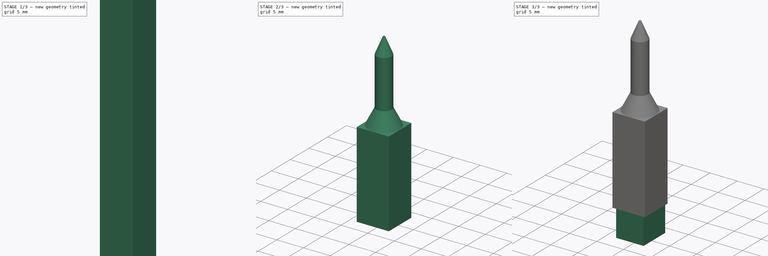
[diagram: build sequence overview — one tinted view per stage of 3, left to right]
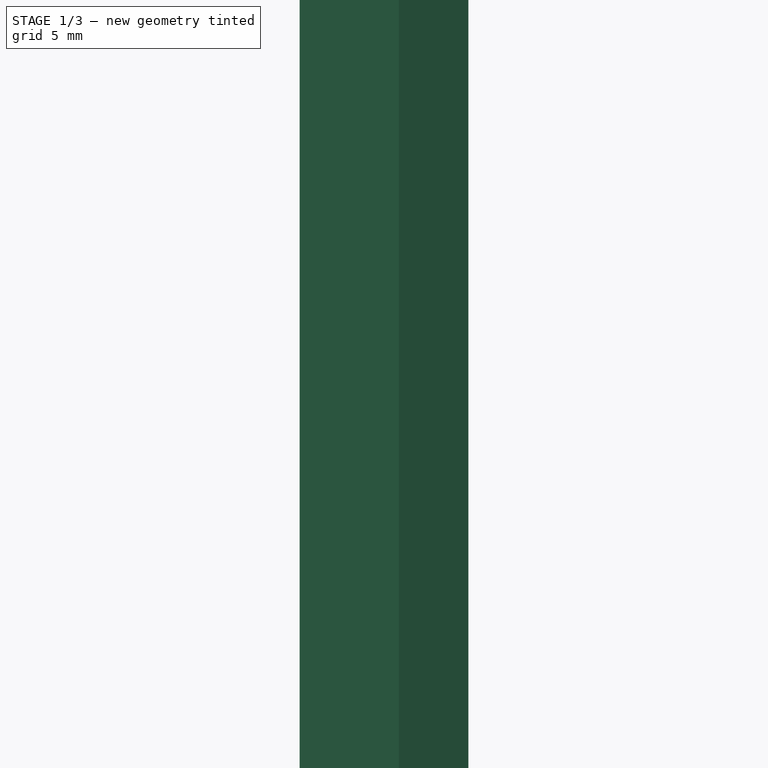
[diagram: stage 1 of 3 — iso view after this stage's code; geometry added in this stage tinted green]
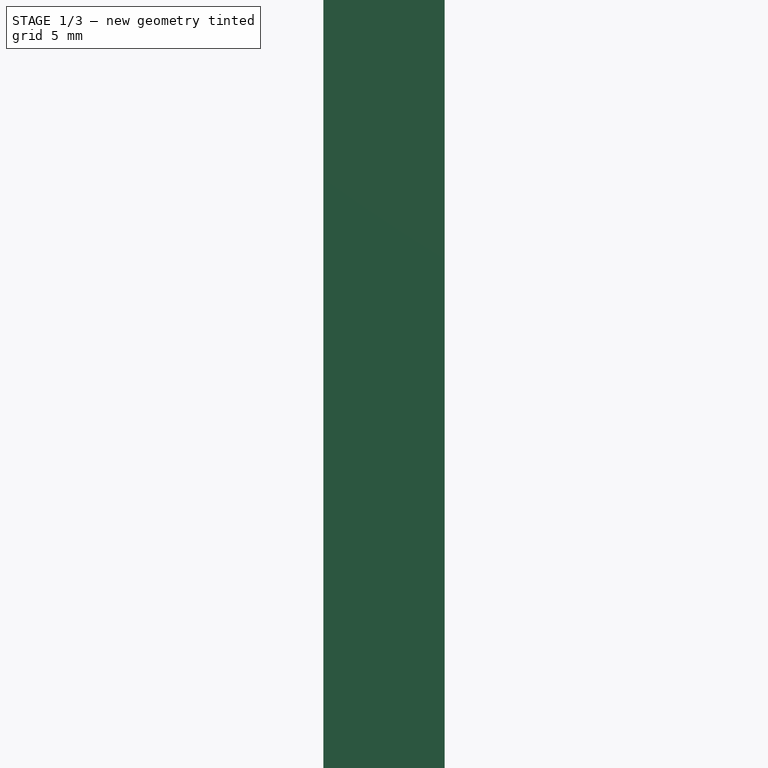
[diagram: stage 1 of 3 — front view after this stage's code; geometry added in this stage tinted green]
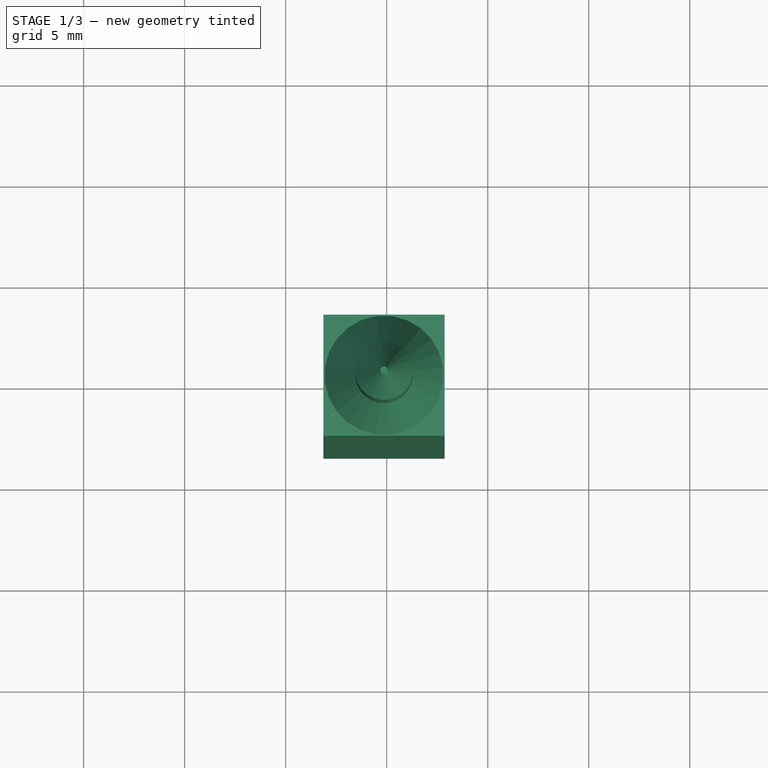
[diagram: stage 1 of 3 — top view after this stage's code; geometry added in this stage tinted green]
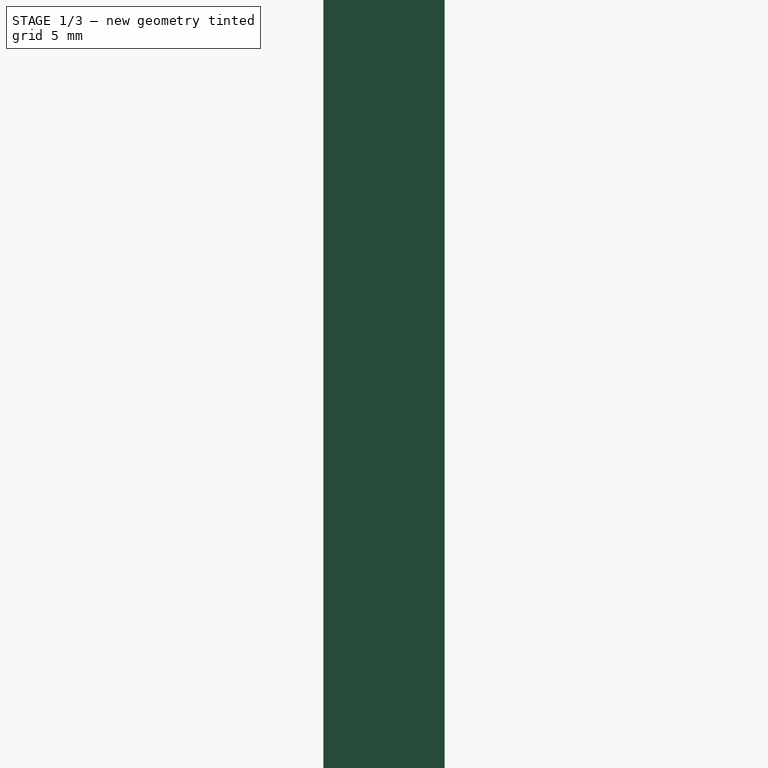
[diagram: stage 1 of 3 — right view after this stage's code; geometry added in this stage tinted green]
FCSTD DOCUMENT  (FreeCAD 0.21R33771 (Git))
Label: Headbar holder
License: All rights reserved
LicenseURL: https://en.wikipedia.org/wiki/All_rights_reserved
objects: Part::Feature×2, PartDesign::FeatureBase×2, PartDesign::Body×2, Part::FeaturePython×2, Sketcher::SketchObject×1, Part::Face×1, App::DocumentObjectGroup×1, Part::MultiFuse×1
note: 11 computed .brp shape members not serialized (recipe doc carries the construction recipe); baked Part::Feature solids carry a one-line shape summary decoded from their .brp

FEATURE [Part::Feature] Stereotaxic_Ear_Bar_mouse_v1_12_21_2015_STL001_solid  label="Stereotaxic_Ear_Bar_mouse_v1_12_21_2015_STL001 (Solid)"
  shape: bbox 6 x 6 x 80 mm, 204 faces (baked)
FEATURE [PartDesign::FeatureBase] BaseFeature
  BaseFeature = -> Stereotaxic_Ear_Bar_mouse_v1_12_21_2015_STL001_solid
FEATURE [Sketcher::SketchObject] Sketch
  FullyConstrained = false
  MapMode = 5
  Support = -> [XY_Plane]
  sketch-geometry (4):
    g0: LineSegment StartX=-8.29775 StartY=7.67293 StartZ=0 EndX=9.80969 EndY=7.67293 EndZ=0
    g1: LineSegment StartX=9.80969 StartY=7.67293 StartZ=0 EndX=9.80969 EndY=-9.01177 EndZ=0
    g2: LineSegment StartX=9.80969 StartY=-9.01177 StartZ=0 EndX=-8.29775 EndY=-9.01177 EndZ=0
    g3: LineSegment StartX=-8.29775 StartY=-9.01177 StartZ=0 EndX=-8.29775 EndY=7.67294 EndZ=0
  constraints (8):
    c: Coincident(g0,g1)
    c: Coincident(g1,g2)
    c: Coincident(g2,g3)
    c: Coincident(g3,g0)
    c: Horizontal(g0)
    c: Horizontal(g2)
    c: Vertical(g1)
    c: Vertical(g3)
FEATURE [PartDesign::Body] Body
  BaseFeature = -> Stereotaxic_Ear_Bar_mouse_v1_12_21_2015_STL001_solid
  Group = -> [BaseFeature,Sketch]
  Origin = -> Origin
  Tip = -> BaseFeature
FEATURE [Part::Face] Face
  FaceMakerClass = Part::FaceMakerBullseye
  Placement = pos=(0,0,49) rot=(0,0,1;0rad)
  Sources = -> [Sketch]
FEATURE [Part::FeaturePython] Slice  # WARN: FeaturePython — macro-defined, semantics opaque (R4)
  Base = -> Body
  Mode = 1
  Tolerance = 0
  Tools = -> [Face]
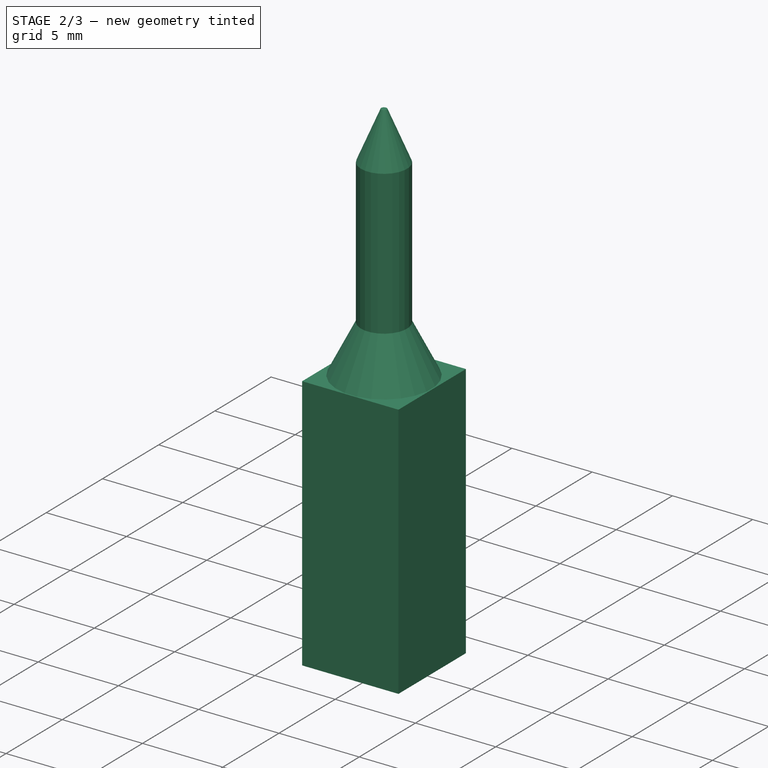
[diagram: stage 2 of 3 — iso view after this stage's code; geometry added in this stage tinted green]
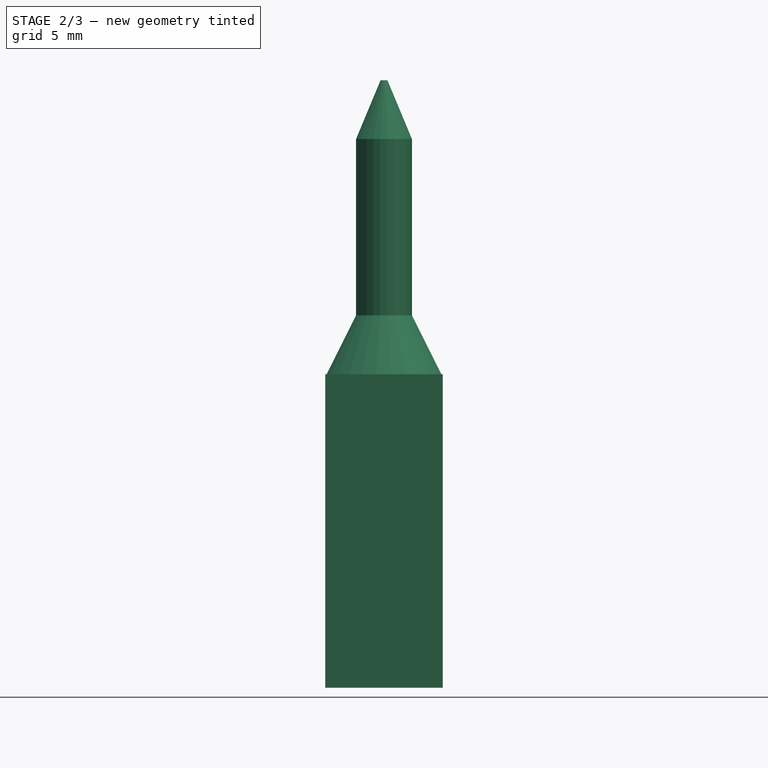
[diagram: stage 2 of 3 — front view after this stage's code; geometry added in this stage tinted green]
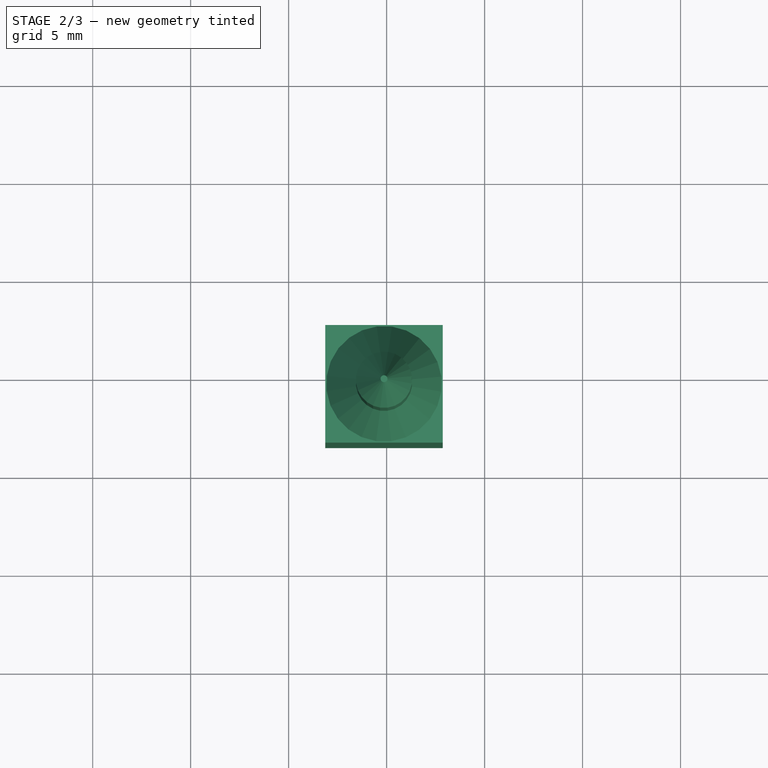
[diagram: stage 2 of 3 — top view after this stage's code; geometry added in this stage tinted green]
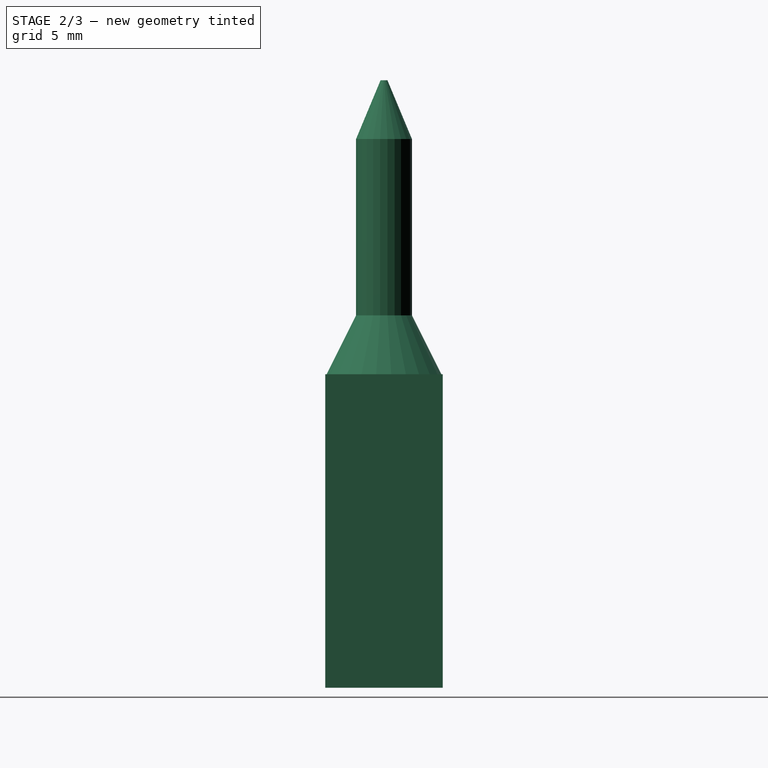
[diagram: stage 2 of 3 — right view after this stage's code; geometry added in this stage tinted green]
FEATURE [Part::FeaturePython] Slice_child1  label="Slice.1"  # WARN: FeaturePython — macro-defined, semantics opaque (R4)
  Base = -> Slice
  FilterType = 1
  Invert = false
  OverrideMaxVal = 0
  WindowFrom = 80
  WindowTo = 100
  items = 1
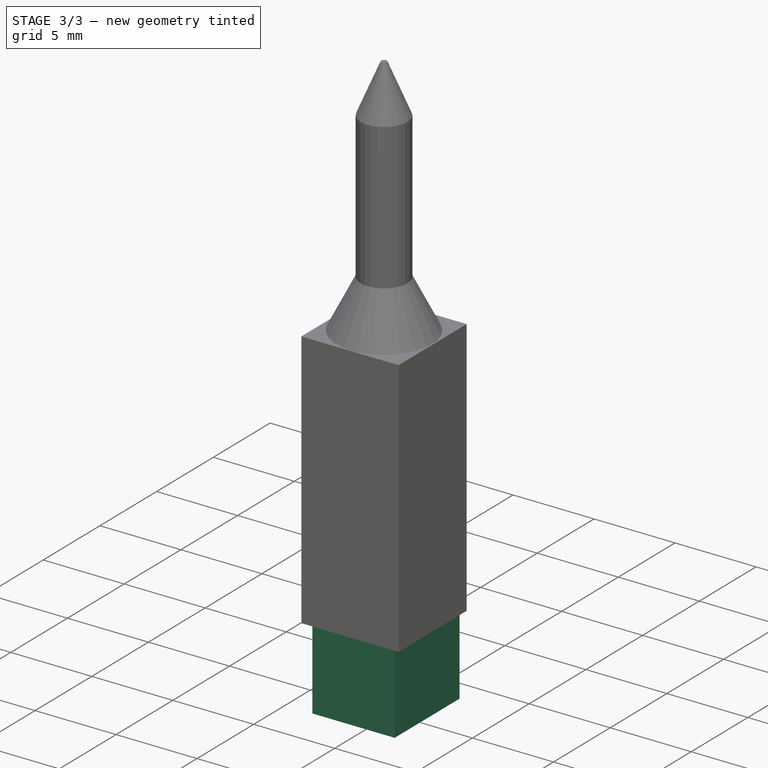
[diagram: stage 3 of 3 — iso view after this stage's code; geometry added in this stage tinted green]
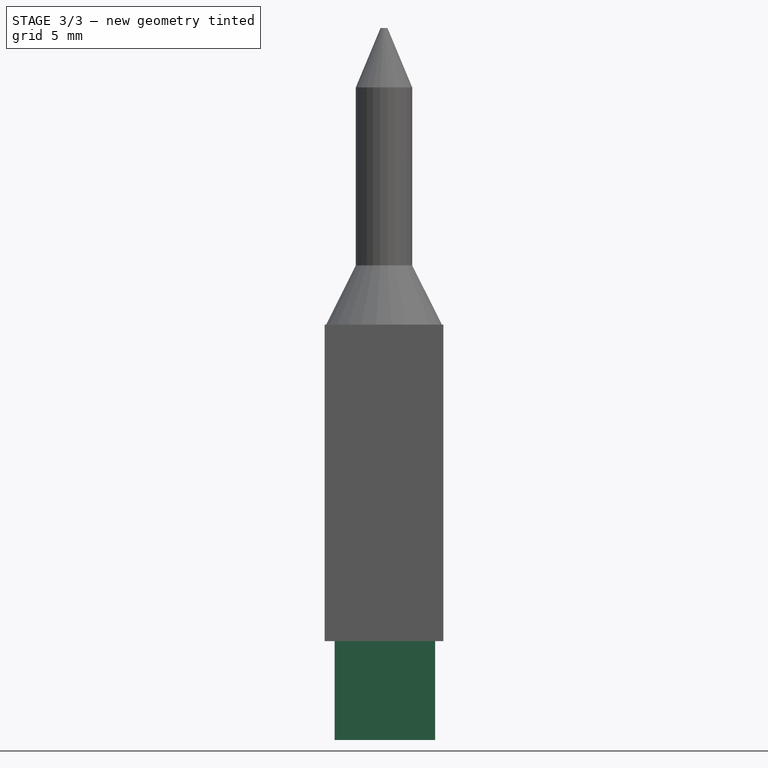
[diagram: stage 3 of 3 — front view after this stage's code; geometry added in this stage tinted green]
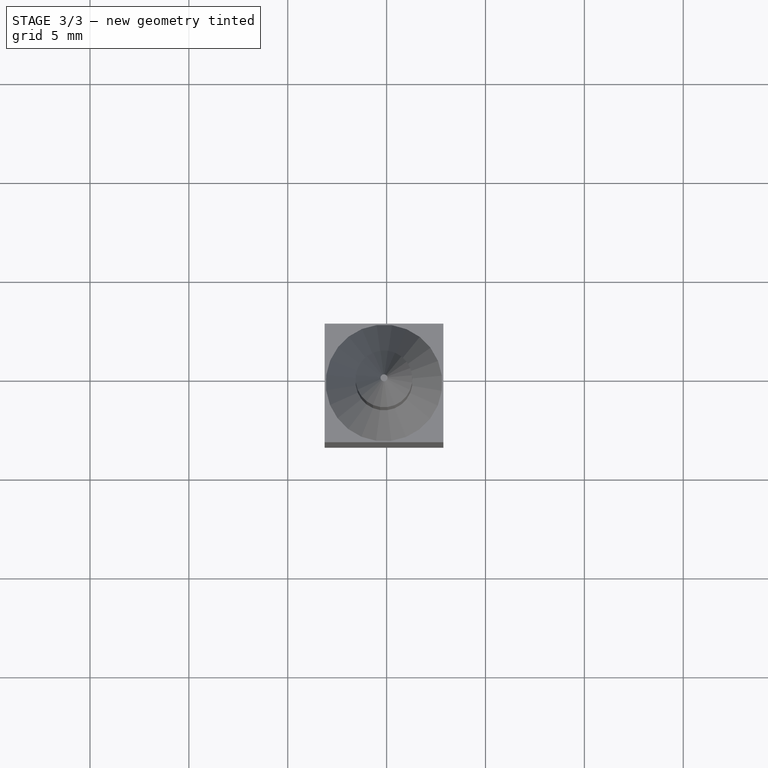
[diagram: stage 3 of 3 — top view after this stage's code; geometry added in this stage tinted green]
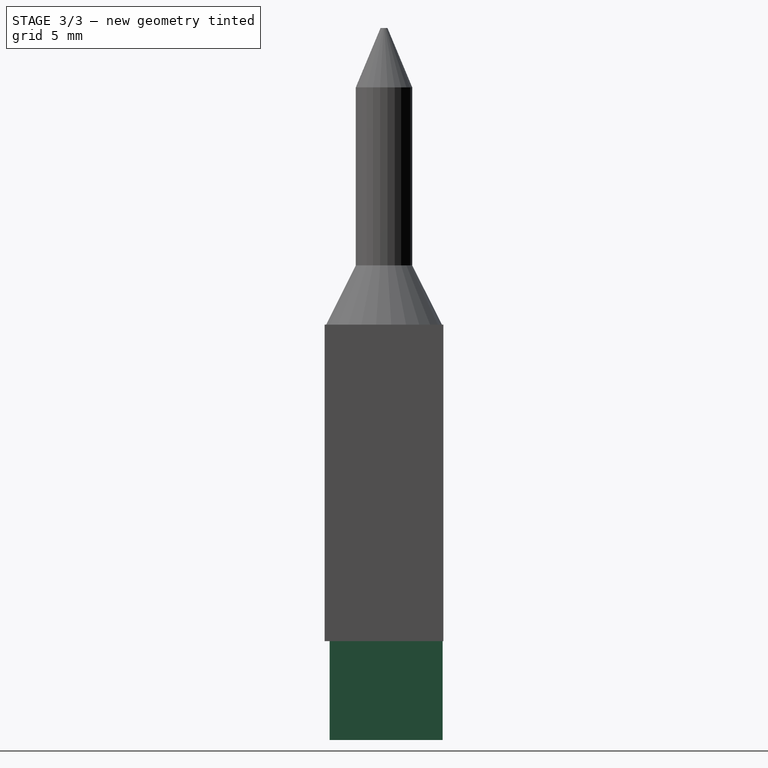
[diagram: stage 3 of 3 — right view after this stage's code; geometry added in this stage tinted green]
FEATURE [App::DocumentObjectGroup] GrExplode_Slice  label="Exploded Slice"
  Group = -> [Slice_child1]
FEATURE [Part::Feature] small_holder__1___1_001_solid  label="small_holder__1___1_001 (Solid)"
  Placement = pos=(2.45,2.5,44) rot=(0,1,0;-1.5708rad)
  shape: bbox 5.08 x 5.715 x 20.19 mm, 370 faces (baked)
FEATURE [PartDesign::FeatureBase] BaseFeature001
  BaseFeature = -> Slice_child1
FEATURE [PartDesign::Body] Body001
  BaseFeature = -> Slice_child1
  Group = -> [BaseFeature001]
  Origin = -> Origin001
  Tip = -> BaseFeature001
FEATURE [Part::MultiFuse] Fusion
  Shapes = -> [small_holder__1___1_001_solid,Body001]
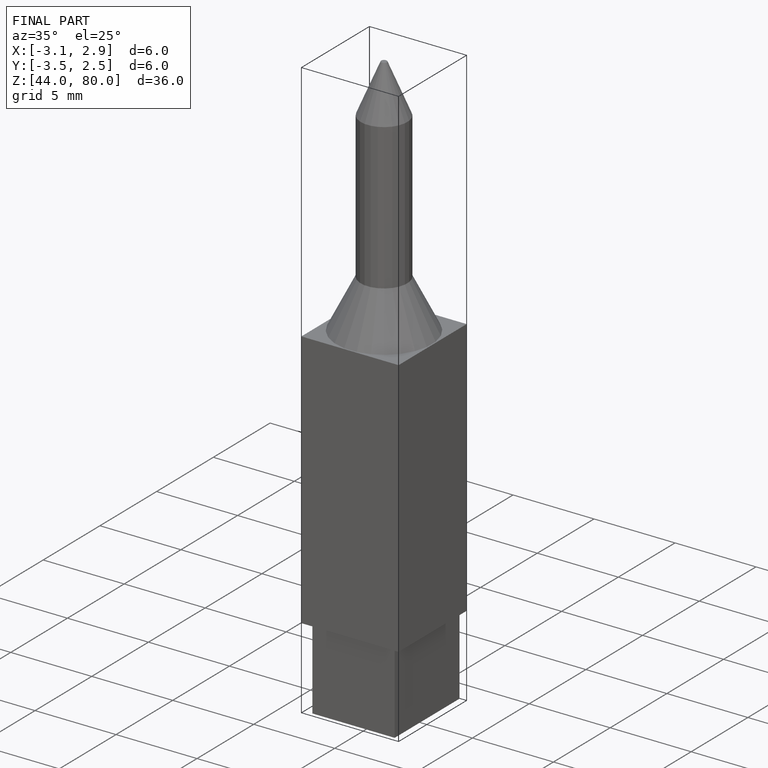
[diagram: finished part — iso view with bounding-box wireframe]
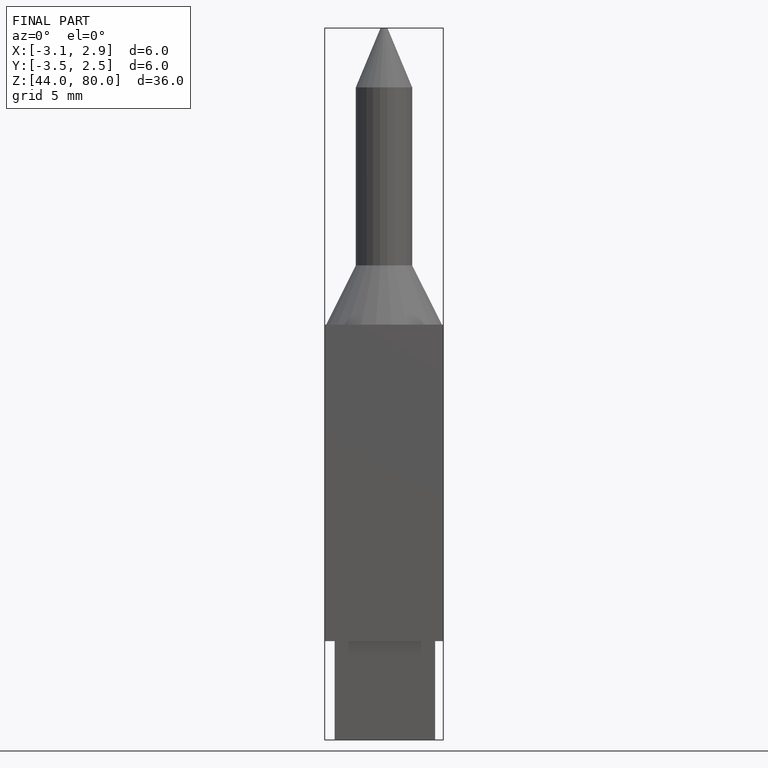
[diagram: finished part — front view with bounding-box wireframe]
